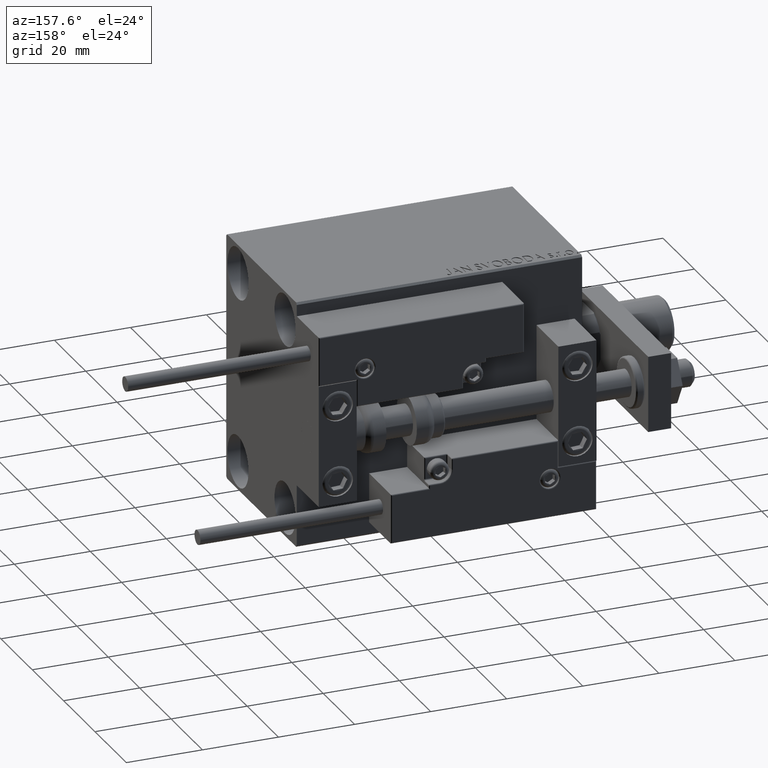
[diagram: clean part render]
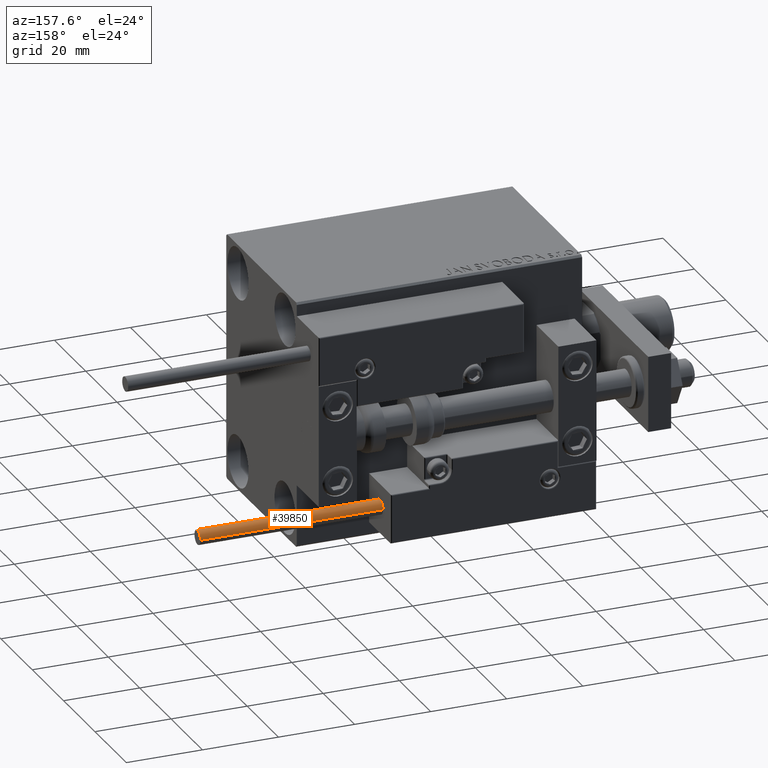
[diagram: same view with one face highlighted and labeled with its STEP entity id]
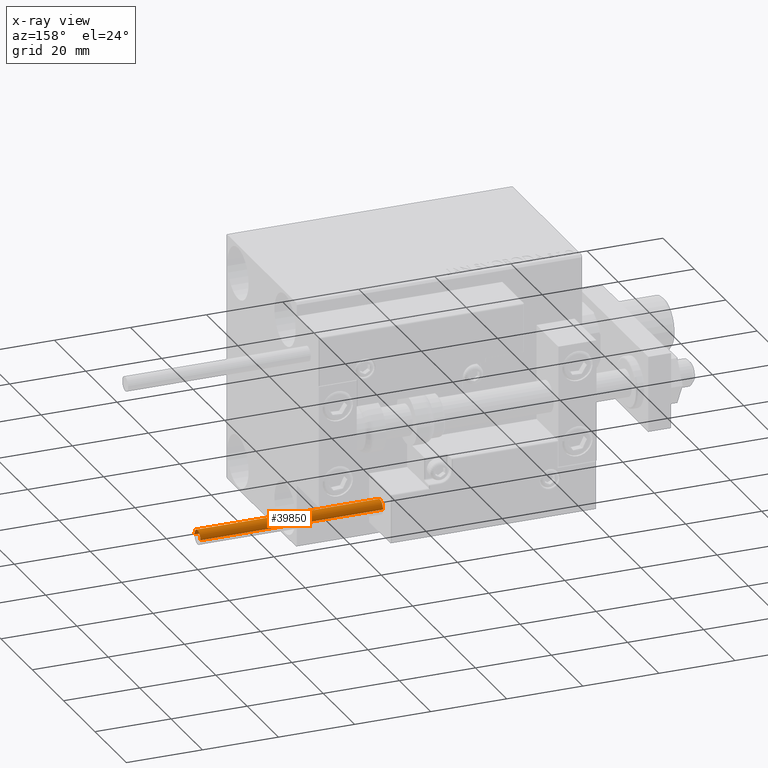
[diagram: x-ray of the same camera — body ghosted, the highlighted face saturated]
A machine part, auxiliary view. The second image highlights one B-rep face of the part: STEP entity #39850.
The next image is the same camera in x-ray: the body ghosted, the highlighted face saturated — about 0% of this face is hidden behind the body in this view.
In plain terms, the highlighted cylindrical surface (edge-blend (fillet) strip) has radius 1.9 mm, axis along (-1, 0, 0).
Its self-contained STEP definition (entity closure, byte-faithful):
#13 = DIRECTION ( 'NONE',  ( -1.000000000000000000, 0.000000000000000000, 0.000000000000000000 ) ) ;
#333 = ORIENTED_EDGE ( 'NONE', *, *, #21409, .T. ) ;
#1084 = EDGE_CURVE ( 'NONE', #28439, #28378, #19048, .T. ) ;
#3901 = DIRECTION ( 'NONE',  ( 0.000000000000000000, 0.000000000000000000, 1.000000000000000000 ) ) ;
#6158 = VERTEX_POINT ( 'NONE', #50150 ) ;
#7255 = CARTESIAN_POINT ( 'NONE',  ( 0.000000000000000000, 0.000000000000000000, 0.000000000000000000 ) ) ;
#9182 = AXIS2_PLACEMENT_3D ( 'NONE', #46459, #30560, #13 ) ;
#10780 = CARTESIAN_POINT ( 'NONE',  ( 0.000000000000000000, 0.000000000000000000, 48.00000000000000000 ) ) ;
#11087 = DIRECTION ( 'NONE',  ( 1.000000000000000000, 0.000000000000000000, 0.000000000000000000 ) ) ;
#11239 = AXIS2_PLACEMENT_3D ( 'NONE', #7255, #3901, #11087 ) ;
#11279 = DIRECTION ( 'NONE',  ( 1.000000000000000000, 0.000000000000000000, 0.000000000000000000 ) ) ;
#12207 = ORIENTED_EDGE ( 'NONE', *, *, #41695, .T. ) ;
#14190 = CARTESIAN_POINT ( 'NONE',  ( -1.899999999999999467, 0.000000000000000000, 48.00000000000000000 ) ) ;
#15133 = DIRECTION ( 'NONE',  ( 0.000000000000000000, 0.000000000000000000, 1.000000000000000000 ) ) ;
#16076 = VECTOR ( 'NONE', #33677, 1000.000000000000000 ) ;
#18123 = ORIENTED_EDGE ( 'NONE', *, *, #24970, .F. ) ;
#19011 = CYLINDRICAL_SURFACE ( 'NONE', #9182, 1.899999999999999467 ) ;
#19048 = LINE ( 'NONE', #14190, #16076 ) ;
#20382 = DIRECTION ( 'NONE',  ( -0.000000000000000000, -0.000000000000000000, -1.000000000000000000 ) ) ;
#21409 = EDGE_CURVE ( 'NONE', #6158, #28378, #41558, .T. ) ;
#24970 = EDGE_CURVE ( 'NONE', #32411, #28439, #26108, .T. ) ;
#26108 = CIRCLE ( 'NONE', #45781, 1.899999999999999467 ) ;
#27212 = VECTOR ( 'NONE', #20382, 1000.000000000000000 ) ;
#28378 = VERTEX_POINT ( 'NONE', #39696 ) ;
#28439 = VERTEX_POINT ( 'NONE', #40204 ) ;
#30560 = DIRECTION ( 'NONE',  ( -0.000000000000000000, -0.000000000000000000, -1.000000000000000000 ) ) ;
#31748 = CARTESIAN_POINT ( 'NONE',  ( 1.899999999999999467, 2.326828918379970872E-16, 48.00000000000000000 ) ) ;
#31915 = LINE ( 'NONE', #42706, #27212 ) ;
#32140 = ORIENTED_EDGE ( 'NONE', *, *, #1084, .F. ) ;
#32411 = VERTEX_POINT ( 'NONE', #31748 ) ;
#33677 = DIRECTION ( 'NONE',  ( -0.000000000000000000, -0.000000000000000000, -1.000000000000000000 ) ) ;
#39007 = FACE_OUTER_BOUND ( 'NONE', #42876, .T. ) ;
#39696 = CARTESIAN_POINT ( 'NONE',  ( -1.899999999999999467, 0.000000000000000000, 0.000000000000000000 ) ) ;
#39850 = ADVANCED_FACE ( 'NONE', ( #39007 ), #19011, .T. ) ;
#40204 = CARTESIAN_POINT ( 'NONE',  ( -1.899999999999999467, 0.000000000000000000, 48.00000000000000000 ) ) ;
#41558 = CIRCLE ( 'NONE', #11239, 1.899999999999999467 ) ;
#41695 = EDGE_CURVE ( 'NONE', #32411, #6158, #31915, .T. ) ;
#42706 = CARTESIAN_POINT ( 'NONE',  ( 1.899999999999999467, 2.326828918379970872E-16, 48.00000000000000000 ) ) ;
#42876 = EDGE_LOOP ( 'NONE', ( #18123, #12207, #333, #32140 ) ) ;
#45781 = AXIS2_PLACEMENT_3D ( 'NONE', #10780, #15133, #11279 ) ;
#46459 = CARTESIAN_POINT ( 'NONE',  ( 0.000000000000000000, 0.000000000000000000, 48.00000000000000000 ) ) ;
#50150 = CARTESIAN_POINT ( 'NONE',  ( 1.899999999999999467, 2.326828918379970872E-16, 0.000000000000000000 ) ) ;